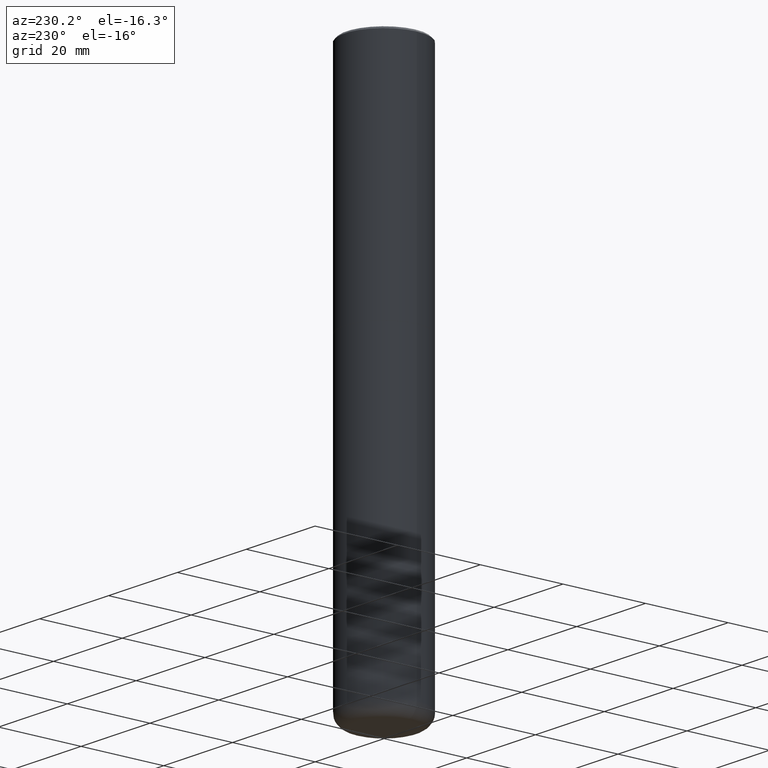
[diagram: clean part render]
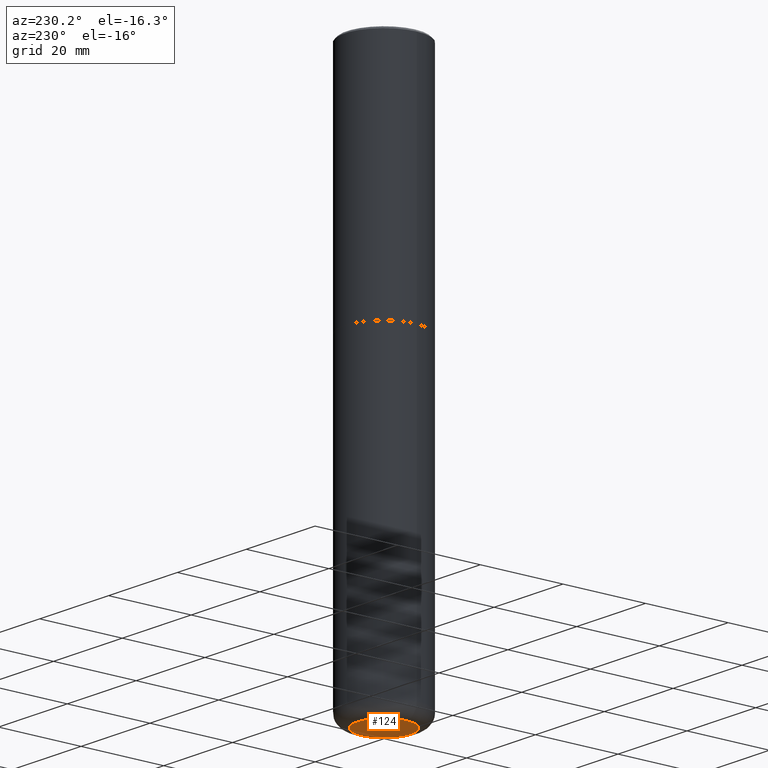
[diagram: same view with one face highlighted and labeled with its STEP entity id]
A machine part, auxiliary view. The second image highlights one B-rep face of the part: STEP entity #124.
In plain terms, the highlighted planar face has unit normal (0, -0, -1).
Its self-contained STEP definition (entity closure, byte-faithful):
#13 = CARTESIAN_POINT ( 'NONE',  ( 0.2550000000000000044, -2.011093251173650682E-14, -5.249999999999999112 ) ) ;
#20 = ORIENTED_EDGE ( 'NONE', *, *, #315, .F. ) ;
#36 = EDGE_LOOP ( 'NONE', ( #20, #271 ) ) ;
#58 = DIRECTION ( 'NONE',  ( -2.445468806185136597E-29, 3.491481338843145583E-15, 1.000000000000000000 ) ) ;
#60 = CARTESIAN_POINT ( 'NONE',  ( 2.854868159318815822E-28, 4.167294683602726042E-15, -5.249999999999999112 ) ) ;
#95 = EDGE_CURVE ( 'NONE', #332, #373, #274, .T. ) ;
#98 = AXIS2_PLACEMENT_3D ( 'NONE', #129, #157, #357 ) ;
#124 = ADVANCED_FACE ( 'NONE', ( #347 ), #352, .T. ) ;
#129 = CARTESIAN_POINT ( 'NONE',  ( 1.283871123247196489E-28, -1.833027702892651007E-14, -5.249999999999999112 ) ) ;
#139 = AXIS2_PLACEMENT_3D ( 'NONE', #289, #58, #414 ) ;
#157 = DIRECTION ( 'NONE',  ( -2.445468806185136597E-29, 3.491481338843145583E-15, 1.000000000000000000 ) ) ;
#191 = DIRECTION ( 'NONE',  ( 2.438088387897960049E-29, -3.491481338843145188E-15, -1.000000000000000000 ) ) ;
#271 = ORIENTED_EDGE ( 'NONE', *, *, #95, .F. ) ;
#274 = CIRCLE ( 'NONE', #139, 0.2550000000000000044 ) ;
#289 = CARTESIAN_POINT ( 'NONE',  ( 1.283871123247196489E-28, -1.833027702892651007E-14, -5.249999999999999112 ) ) ;
#315 = EDGE_CURVE ( 'NONE', #373, #332, #316, .T. ) ;
#316 = CIRCLE ( 'NONE', #98, 0.2550000000000000044 ) ;
#332 = VERTEX_POINT ( 'NONE', #363 ) ;
#347 = FACE_OUTER_BOUND ( 'NONE', #36, .T. ) ;
#349 = AXIS2_PLACEMENT_3D ( 'NONE', #60, #191, #417 ) ;
#352 = PLANE ( 'NONE',  #349 ) ;
#357 = DIRECTION ( 'NONE',  ( 1.000000000000000000, -6.982962677686260400E-15, 0.000000000000000000 ) ) ;
#363 = CARTESIAN_POINT ( 'NONE',  ( -0.2550000000000000044, -1.588257853095161128E-14, -5.249999999999999112 ) ) ;
#373 = VERTEX_POINT ( 'NONE', #13 ) ;
#414 = DIRECTION ( 'NONE',  ( 1.000000000000000000, -6.982962677686260400E-15, 0.000000000000000000 ) ) ;
#417 = DIRECTION ( 'NONE',  ( -1.000000000000000000, 6.982962677686265922E-15, -4.876176775795935793E-29 ) ) ;